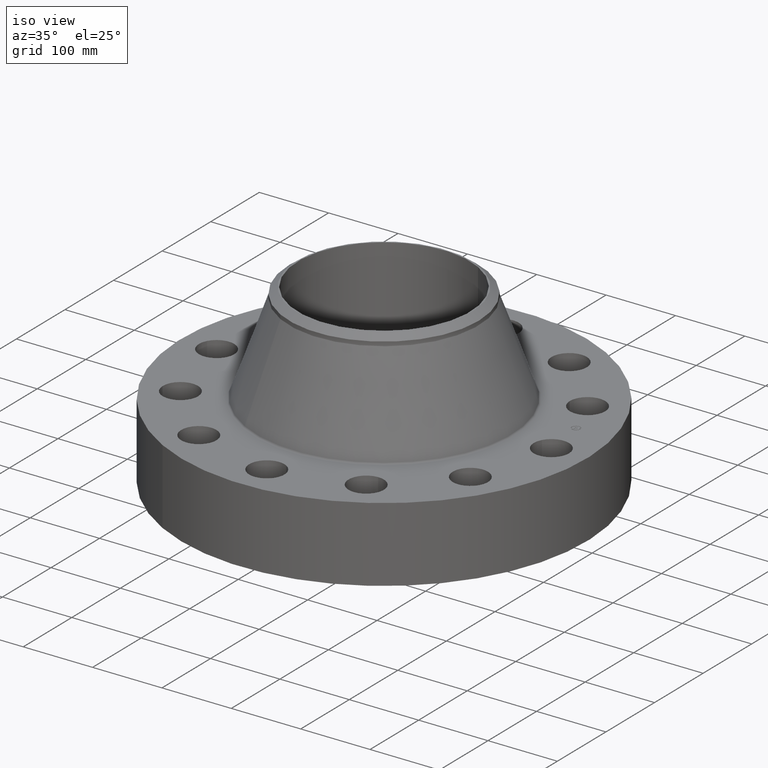
[diagram: clean part render]
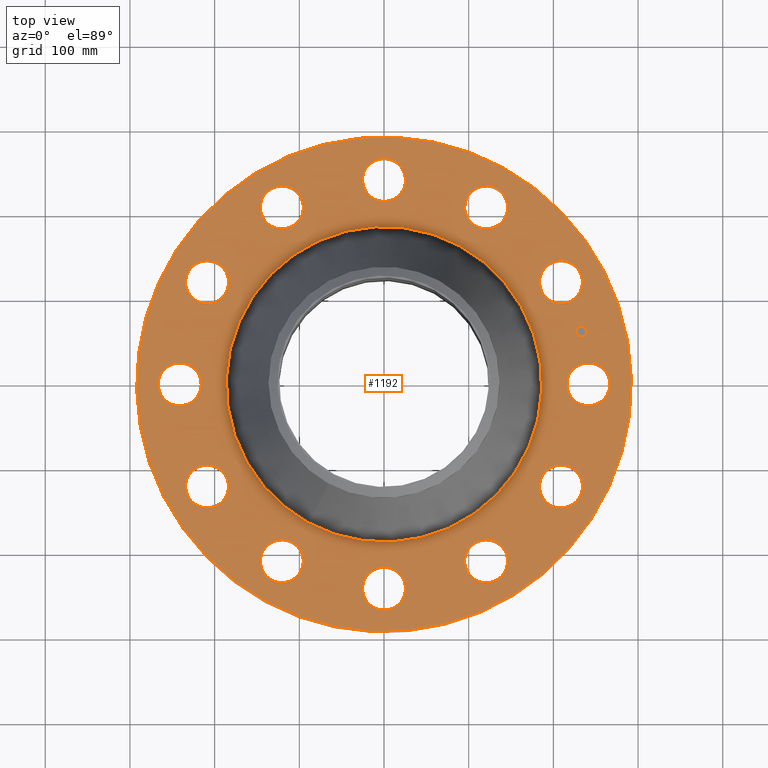
[diagram: tour spotlight — one face highlighted and labeled with its STEP entity id]
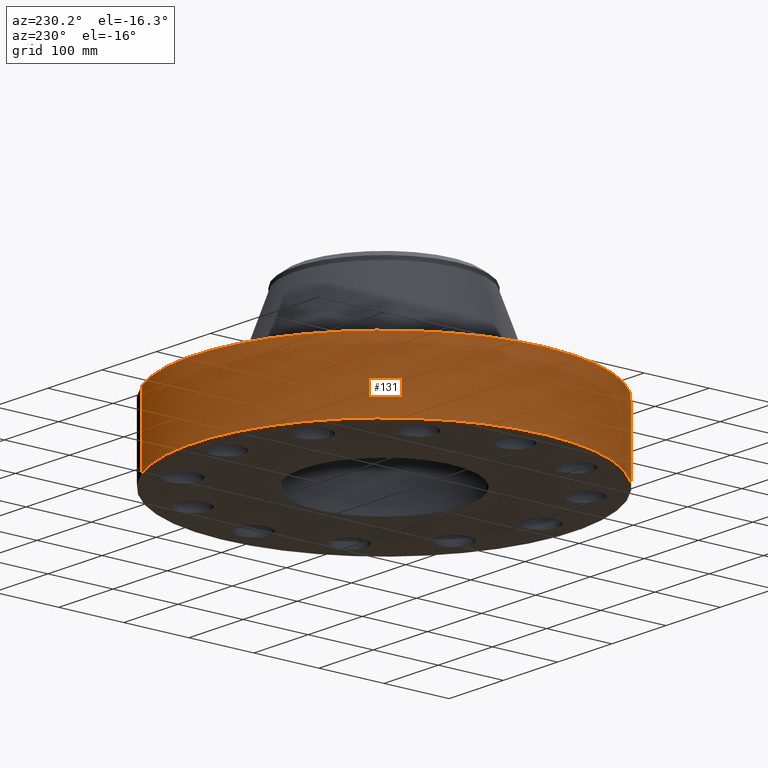
[diagram: tour spotlight — one face highlighted and labeled with its STEP entity id]
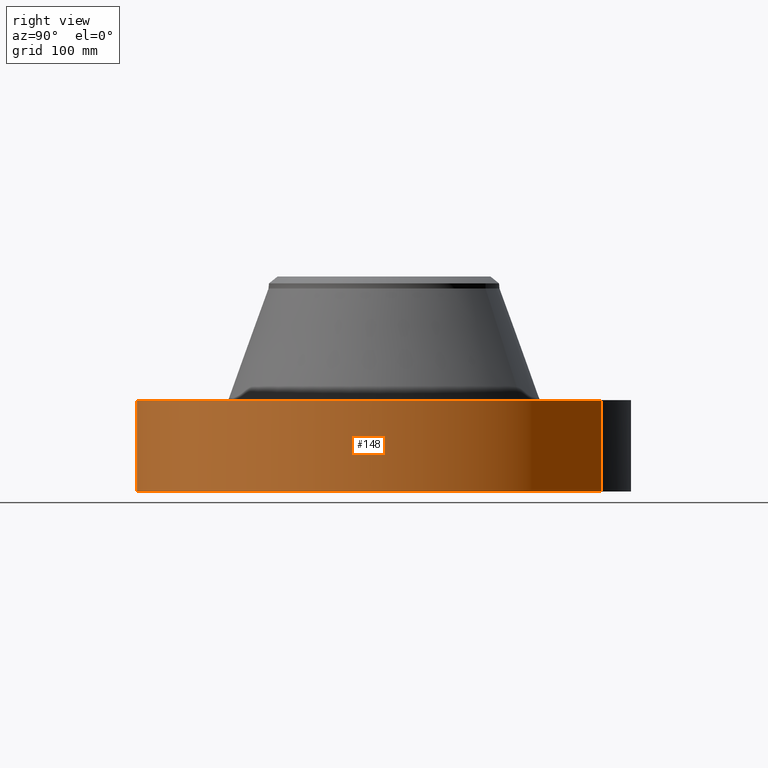
[diagram: tour spotlight — one face highlighted and labeled with its STEP entity id]
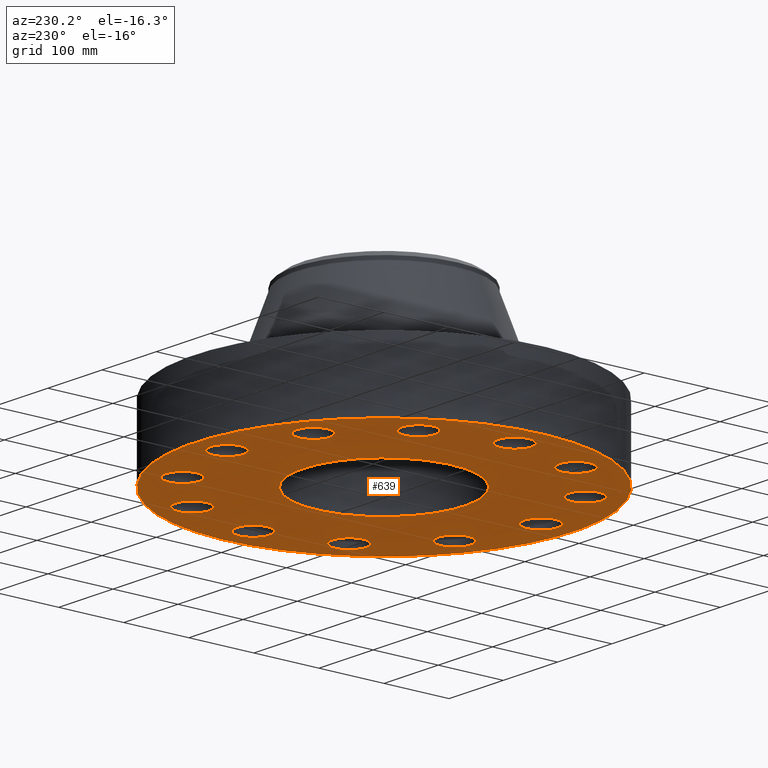
[diagram: tour spotlight — one face highlighted and labeled with its STEP entity id]
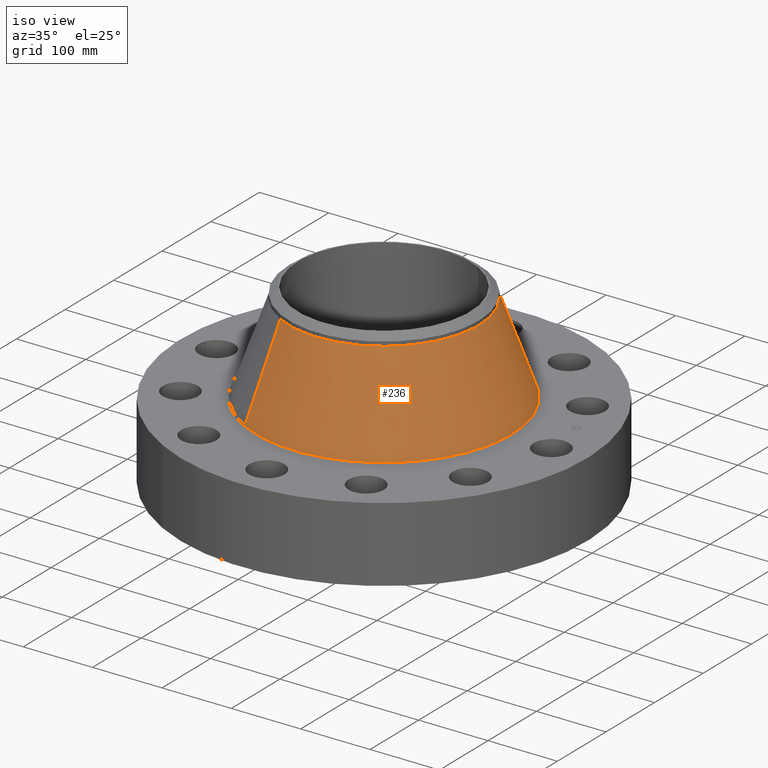
[diagram: tour spotlight — one face highlighted and labeled with its STEP entity id]
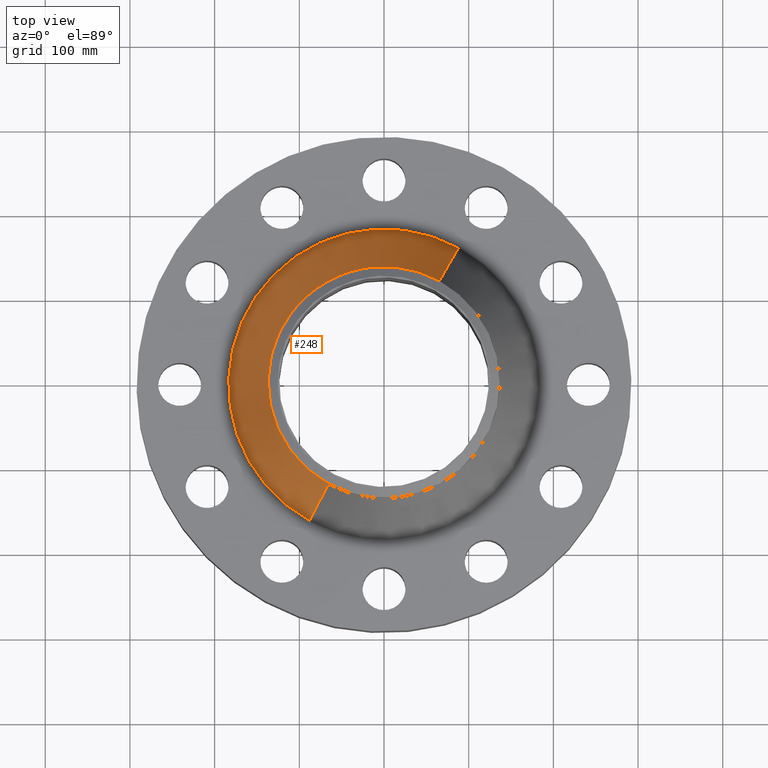
[diagram: tour spotlight — one face highlighted and labeled with its STEP entity id]
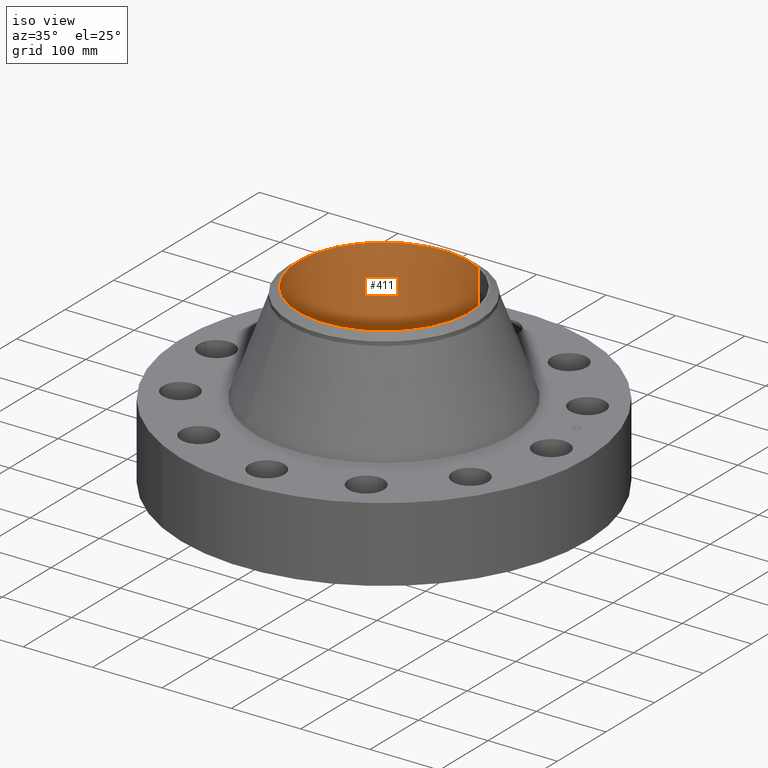
[diagram: tour spotlight — one face highlighted and labeled with its STEP entity id]
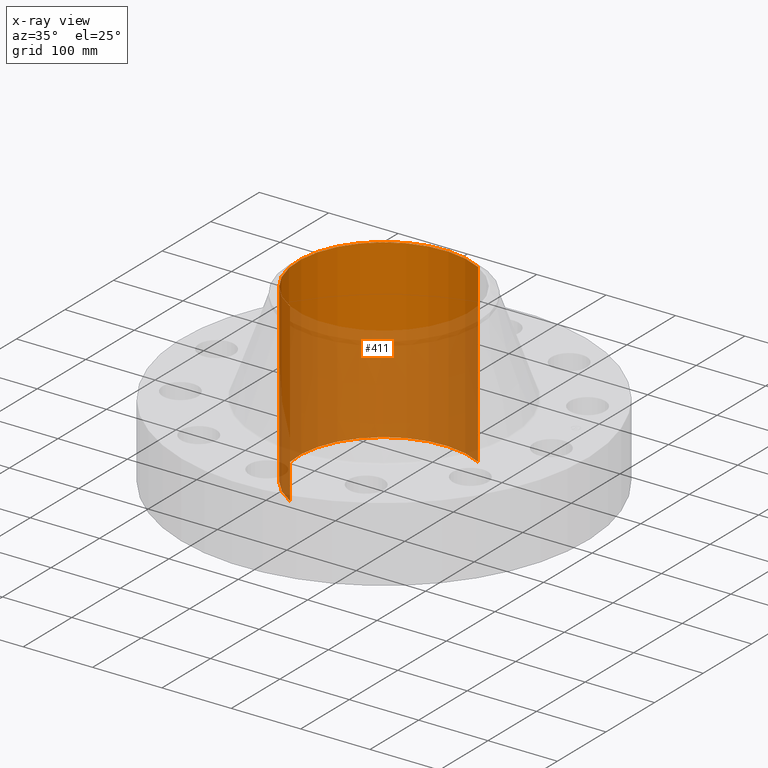
[diagram: x-ray of the same camera — body ghosted, this tour face saturated]
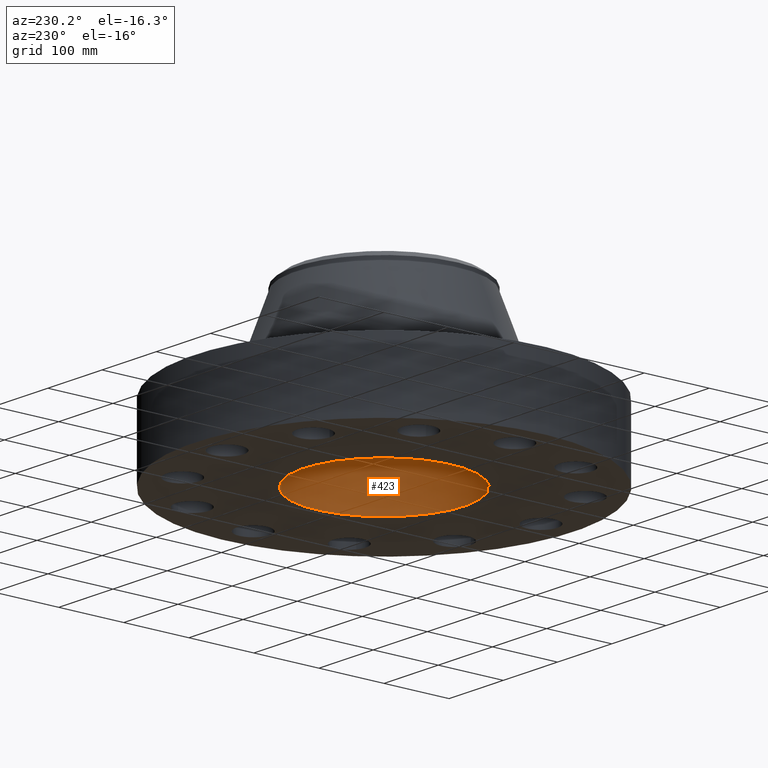
[diagram: tour spotlight — one face highlighted and labeled with its STEP entity id]
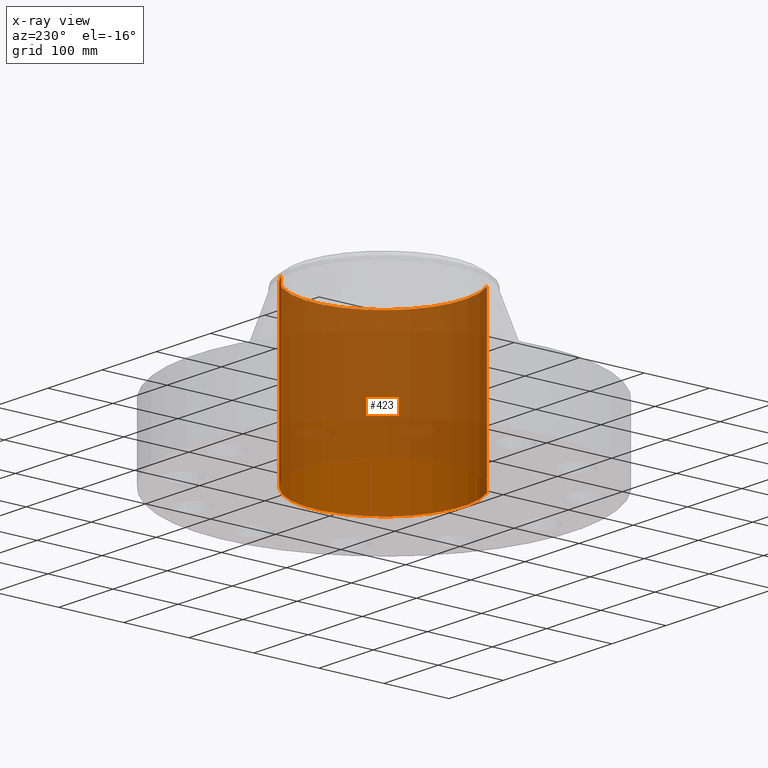
[diagram: x-ray of the same camera — body ghosted, this tour face saturated]
A machine part: a face-by-face anatomy tour. The part has 424 B-rep faces; the first image is the clean iso view, then the 8 largest visible faces are spotlighted one at a time (largest first), each with its STEP entity span.

Face 1 — top view, entity #1192. In plain terms, the highlighted planar face has unit normal (0, 0, -1).
Definition (entity closure, byte-faithful):
#65=AXIS2_PLACEMENT_3D('Circle Axis2P3D',#63,#64,$) ;
#82=AXIS2_PLACEMENT_3D('Circle Axis2P3D',#80,#81,$) ;
#115=AXIS2_PLACEMENT_3D('Circle Axis2P3D',#113,#114,$) ;
#139=AXIS2_PLACEMENT_3D('Circle Axis2P3D',#137,#138,$) ;
#156=AXIS2_PLACEMENT_3D('Circle Axis2P3D',#154,#155,$) ;
#191=AXIS2_PLACEMENT_3D('Circle Axis2P3D',#189,#190,$) ;
#661=AXIS2_PLACEMENT_3D('Circle Axis2P3D',#659,#660,$) ;
#673=AXIS2_PLACEMENT_3D('Circle Axis2P3D',#671,#672,$) ;
#704=AXIS2_PLACEMENT_3D('Circle Axis2P3D',#702,#703,$) ;
#716=AXIS2_PLACEMENT_3D('Circle Axis2P3D',#714,#715,$) ;
#747=AXIS2_PLACEMENT_3D('Circle Axis2P3D',#745,#746,$) ;
#759=AXIS2_PLACEMENT_3D('Circle Axis2P3D',#757,#758,$) ;
#790=AXIS2_PLACEMENT_3D('Circle Axis2P3D',#788,#789,$) ;
#802=AXIS2_PLACEMENT_3D('Circle Axis2P3D',#800,#801,$) ;
#833=AXIS2_PLACEMENT_3D('Circle Axis2P3D',#831,#832,$) ;
#845=AXIS2_PLACEMENT_3D('Circle Axis2P3D',#843,#844,$) ;
#876=AXIS2_PLACEMENT_3D('Circle Axis2P3D',#874,#875,$) ;
#888=AXIS2_PLACEMENT_3D('Circle Axis2P3D',#886,#887,$) ;
#919=AXIS2_PLACEMENT_3D('Circle Axis2P3D',#917,#918,$) ;
#931=AXIS2_PLACEMENT_3D('Circle Axis2P3D',#929,#930,$) ;
#962=AXIS2_PLACEMENT_3D('Circle Axis2P3D',#960,#961,$) ;
#974=AXIS2_PLACEMENT_3D('Circle Axis2P3D',#972,#973,$) ;
#1005=AXIS2_PLACEMENT_3D('Circle Axis2P3D',#1003,#1004,$) ;
#1017=AXIS2_PLACEMENT_3D('Circle Axis2P3D',#1015,#1016,$) ;
#1048=AXIS2_PLACEMENT_3D('Circle Axis2P3D',#1046,#1047,$) ;
#1060=AXIS2_PLACEMENT_3D('Circle Axis2P3D',#1058,#1059,$) ;
#1091=AXIS2_PLACEMENT_3D('Circle Axis2P3D',#1089,#1090,$) ;
#1103=AXIS2_PLACEMENT_3D('Circle Axis2P3D',#1101,#1102,$) ;
#1116=AXIS2_PLACEMENT_3D('Plane Axis2P3D',#1113,#1114,#1115) ;
#1176=AXIS2_PLACEMENT_3D('Circle Axis2P3D',#1174,#1175,$) ;
#1185=AXIS2_PLACEMENT_3D('Circle Axis2P3D',#1183,#1184,$) ;
#46=CARTESIAN_POINT('Vertex',(8.62241743814,0.479425538606,4.25000000002)) ;
#60=CARTESIAN_POINT('Vertex',(10.3775825619,-0.479425538606,4.25000000002)) ;
#63=CARTESIAN_POINT('Axis2P3D Location',(9.50000000004,0.,4.25000000002)) ;
#80=CARTESIAN_POINT('Axis2P3D Location',(9.50000000004,0.,4.25000000002)) ;
#110=CARTESIAN_POINT('Vertex',(-5.51339369397,-10.0921994618,4.25000000002)) ;
#113=CARTESIAN_POINT('Axis2P3D Location',(0.,0.,4.25000000002)) ;
#117=CARTESIAN_POINT('Vertex',(5.51339369397,10.0921994618,4.25000000002)) ;
#137=CARTESIAN_POINT('Axis2P3D Location',(0.,0.,4.25000000002)) ;
#154=CARTESIAN_POINT('Axis2P3D Location',(0.,0.,4.25000000002)) ;
#158=CARTESIAN_POINT('Vertex',(3.51622258166,6.43640226255,4.25000000002)) ;
#160=CARTESIAN_POINT('Vertex',(-3.51622258166,-6.43640226255,4.25000000002)) ;
#189=CARTESIAN_POINT('Axis2P3D Location',(0.,0.,4.25000000002)) ;
#649=CARTESIAN_POINT('Vertex',(-7.70694531277,3.89601402342,4.25000000002)) ;
#656=CARTESIAN_POINT('Vertex',(-8.7475373592,5.60398597662,4.25000000002)) ;
#659=CARTESIAN_POINT('Axis2P3D Location',(-8.22724133599,4.75000000002,4.25000000002)) ;
#671=CARTESIAN_POINT('Axis2P3D Location',(-8.22724133599,4.75000000002,4.25000000002)) ;
#692=CARTESIAN_POINT('Vertex',(4.72640341473,-7.22751977416,4.25000000002)) ;
#699=CARTESIAN_POINT('Vertex',(4.77359658531,-9.22696289781,4.25000000002)) ;
#702=CARTESIAN_POINT('Axis2P3D Location',(4.75000000002,-8.22724133599,4.25000000002)) ;
#714=CARTESIAN_POINT('Axis2P3D Location',(4.75000000002,-8.22724133599,4.25000000002)) ;
#735=CARTESIAN_POINT('Vertex',(-4.72640341473,7.22751977416,4.25000000002)) ;
#742=CARTESIAN_POINT('Vertex',(-4.77359658531,9.22696289781,4.25000000002)) ;
#745=CARTESIAN_POINT('Axis2P3D Location',(-4.75000000002,8.22724133599,4.25000000002)) ;
#757=CARTESIAN_POINT('Axis2P3D Location',(-4.75000000002,8.22724133599,4.25000000002)) ;
#778=CARTESIAN_POINT('Vertex',(0.479425538606,-8.62241743814,4.25000000002)) ;
#785=CARTESIAN_POINT('Vertex',(-0.479425538606,-10.3775825619,4.25000000002)) ;
#788=CARTESIAN_POINT('Axis2P3D Location',(-5.37257708608E-016,-9.50000000004,4.25000000002)) ;
#800=CARTESIAN_POINT('Axis2P3D Location',(-5.37257708608E-016,-9.50000000004,4.25000000002)) ;
#821=CARTESIAN_POINT('Vertex',(-0.479425538606,8.62241743814,4.25000000002)) ;
#828=CARTESIAN_POINT('Vertex',(0.479425538606,10.3775825619,4.25000000002)) ;
#831=CARTESIAN_POINT('Axis2P3D Location',(-6.26156750587E-016,9.50000000004,4.25000000002)) ;
#843=CARTESIAN_POINT('Axis2P3D Location',(-6.26156750587E-016,9.50000000004,4.25000000002)) ;
#864=CARTESIAN_POINT('Vertex',(-3.89601402342,-7.70694531277,4.25000000002)) ;
#871=CARTESIAN_POINT('Vertex',(-5.60398597662,-8.7475373592,4.25000000002)) ;
#874=CARTESIAN_POINT('Axis2P3D Location',(-4.75000000002,-8.22724133599,4.25000000002)) ;
#886=CARTESIAN_POINT('Axis2P3D Location',(-4.75000000002,-8.22724133599,4.25000000002)) ;
#907=CARTESIAN_POINT('Vertex',(3.89601402342,7.70694531277,4.25000000002)) ;
#914=CARTESIAN_POINT('Vertex',(5.60398597662,8.7475373592,4.25000000002)) ;
#917=CARTESIAN_POINT('Axis2P3D Location',(4.75000000002,8.22724133599,4.25000000002)) ;
#929=CARTESIAN_POINT('Axis2P3D Location',(4.75000000002,8.22724133599,4.25000000002)) ;
#950=CARTESIAN_POINT('Vertex',(-7.22751977416,-4.72640341473,4.25000000002)) ;
#957=CARTESIAN_POINT('Vertex',(-9.22696289781,-4.77359658531,4.25000000002)) ;
#960=CARTESIAN_POINT('Axis2P3D Location',(-8.22724133599,-4.75000000002,4.25000000002)) ;
#972=CARTESIAN_POINT('Axis2P3D Location',(-8.22724133599,-4.75000000002,4.25000000002)) ;
#993=CARTESIAN_POINT('Vertex',(7.22751977416,4.72640341473,4.25000000002)) ;
#1000=CARTESIAN_POINT('Vertex',(9.22696289781,4.77359658531,4.25000000002)) ;
#1003=CARTESIAN_POINT('Axis2P3D Location',(8.22724133599,4.75000000002,4.25000000002)) ;
#1015=CARTESIAN_POINT('Axis2P3D Location',(8.22724133599,4.75000000002,4.25000000002)) ;
#1036=CARTESIAN_POINT('Vertex',(-8.62241743814,-0.479425538606,4.25000000002)) ;
#1043=CARTESIAN_POINT('Vertex',(-10.3775825619,0.479425538606,4.25000000002)) ;
#1046=CARTESIAN_POINT('Axis2P3D Location',(-9.50000000004,-1.16341445919E-015,4.25000000002)) ;
#1058=CARTESIAN_POINT('Axis2P3D Location',(-9.50000000004,-1.16341445919E-015,4.25000000002)) ;
#1079=CARTESIAN_POINT('Vertex',(7.70694531277,-3.89601402342,4.25000000002)) ;
#1086=CARTESIAN_POINT('Vertex',(8.7475373592,-5.60398597662,4.25000000002)) ;
#1089=CARTESIAN_POINT('Axis2P3D Location',(8.22724133599,-4.75000000002,4.25000000002)) ;
#1101=CARTESIAN_POINT('Axis2P3D Location',(8.22724133599,-4.75000000002,4.25000000002)) ;
#1113=CARTESIAN_POINT('Axis2P3D Location',(0.,11.5,4.25000000002)) ;
#1174=CARTESIAN_POINT('Axis2P3D Location',(9.17629534978,2.45878092848,4.25000000002)) ;
#1178=CARTESIAN_POINT('Vertex',(9.11223763612,2.69784757049,4.25000000002)) ;
#1180=CARTESIAN_POINT('Vertex',(9.24035306345,2.21971428648,4.25000000002)) ;
#1183=CARTESIAN_POINT('Axis2P3D Location',(9.17629534978,2.45878092848,4.25000000002)) ;
#64=DIRECTION('Axis2P3D Direction',(0.,-0.,-0.0393700787402)) ;
#81=DIRECTION('Axis2P3D Direction',(0.,-0.,-0.0393700787402)) ;
#114=DIRECTION('Axis2P3D Direction',(0.,0.,-0.0393700787402)) ;
#138=DIRECTION('Axis2P3D Direction',(0.,0.,-0.0393700787402)) ;
#155=DIRECTION('Axis2P3D Direction',(0.,0.,-0.0393700787402)) ;
#190=DIRECTION('Axis2P3D Direction',(0.,0.,-0.0393700787402)) ;
#660=DIRECTION('Axis2P3D Direction',(0.,0.,-0.0393700787402)) ;
#672=DIRECTION('Axis2P3D Direction',(0.,0.,-0.0393700787402)) ;
#703=DIRECTION('Axis2P3D Direction',(0.,-0.,-0.0393700787402)) ;
#715=DIRECTION('Axis2P3D Direction',(0.,-0.,-0.0393700787402)) ;
#746=DIRECTION('Axis2P3D Direction',(0.,0.,-0.0393700787402)) ;
#758=DIRECTION('Axis2P3D Direction',(0.,0.,-0.0393700787402)) ;
#789=DIRECTION('Axis2P3D Direction',(0.,-0.,-0.0393700787402)) ;
#801=DIRECTION('Axis2P3D Direction',(0.,-0.,-0.0393700787402)) ;
#832=DIRECTION('Axis2P3D Direction',(0.,0.,-0.0393700787402)) ;
#844=DIRECTION('Axis2P3D Direction',(0.,0.,-0.0393700787402)) ;
#875=DIRECTION('Axis2P3D Direction',(-0.,0.,-0.0393700787402)) ;
#887=DIRECTION('Axis2P3D Direction',(-0.,0.,-0.0393700787402)) ;
#918=DIRECTION('Axis2P3D Direction',(0.,0.,-0.0393700787402)) ;
#930=DIRECTION('Axis2P3D Direction',(0.,0.,-0.0393700787402)) ;
#961=DIRECTION('Axis2P3D Direction',(-0.,0.,-0.0393700787402)) ;
#973=DIRECTION('Axis2P3D Direction',(-0.,0.,-0.0393700787402)) ;
#1004=DIRECTION('Axis2P3D Direction',(0.,0.,-0.0393700787402)) ;
#1016=DIRECTION('Axis2P3D Direction',(0.,0.,-0.0393700787402)) ;
#1047=DIRECTION('Axis2P3D Direction',(-0.,0.,-0.0393700787402)) ;
#1059=DIRECTION('Axis2P3D Direction',(-0.,0.,-0.0393700787402)) ;
#1090=DIRECTION('Axis2P3D Direction',(0.,-0.,-0.0393700787402)) ;
#1102=DIRECTION('Axis2P3D Direction',(0.,-0.,-0.0393700787402)) ;
#1114=DIRECTION('Axis2P3D Direction',(0.,0.,-0.0393700787402)) ;
#1115=DIRECTION('Axis2P3D XDirection',(0.0393700787402,0.,0.)) ;
#1175=DIRECTION('Axis2P3D Direction',(0.,0.,-0.0393700787402)) ;
#1184=DIRECTION('Axis2P3D Direction',(0.,0.,-0.0393700787402)) ;
#1119=ORIENTED_EDGE('',*,*,#141,.F.) ;
#1120=ORIENTED_EDGE('',*,*,#119,.F.) ;
#1123=ORIENTED_EDGE('',*,*,#67,.T.) ;
#1124=ORIENTED_EDGE('',*,*,#84,.T.) ;
#1127=ORIENTED_EDGE('',*,*,#193,.T.) ;
#1128=ORIENTED_EDGE('',*,*,#162,.T.) ;
#1131=ORIENTED_EDGE('',*,*,#1105,.T.) ;
#1132=ORIENTED_EDGE('',*,*,#1093,.T.) ;
#1135=ORIENTED_EDGE('',*,*,#718,.T.) ;
#1136=ORIENTED_EDGE('',*,*,#706,.T.) ;
#1139=ORIENTED_EDGE('',*,*,#804,.T.) ;
#1140=ORIENTED_EDGE('',*,*,#792,.T.) ;
#1143=ORIENTED_EDGE('',*,*,#890,.T.) ;
#1144=ORIENTED_EDGE('',*,*,#878,.T.) ;
#1147=ORIENTED_EDGE('',*,*,#976,.T.) ;
#1148=ORIENTED_EDGE('',*,*,#964,.T.) ;
#1151=ORIENTED_EDGE('',*,*,#1062,.T.) ;
#1152=ORIENTED_EDGE('',*,*,#1050,.T.) ;
#1155=ORIENTED_EDGE('',*,*,#675,.T.) ;
#1156=ORIENTED_EDGE('',*,*,#663,.T.) ;
#1159=ORIENTED_EDGE('',*,*,#761,.T.) ;
#1160=ORIENTED_EDGE('',*,*,#749,.T.) ;
#1163=ORIENTED_EDGE('',*,*,#847,.T.) ;
#1164=ORIENTED_EDGE('',*,*,#835,.T.) ;
#1167=ORIENTED_EDGE('',*,*,#933,.T.) ;
#1168=ORIENTED_EDGE('',*,*,#921,.T.) ;
#1171=ORIENTED_EDGE('',*,*,#1019,.T.) ;
#1172=ORIENTED_EDGE('',*,*,#1007,.T.) ;
#1189=ORIENTED_EDGE('',*,*,#1182,.T.) ;
#1190=ORIENTED_EDGE('',*,*,#1187,.T.) ;
#1125=FACE_BOUND('',#1122,.T.) ;
#1129=FACE_BOUND('',#1126,.T.) ;
#1133=FACE_BOUND('',#1130,.T.) ;
#1137=FACE_BOUND('',#1134,.T.) ;
#1141=FACE_BOUND('',#1138,.T.) ;
#1145=FACE_BOUND('',#1142,.T.) ;
#1149=FACE_BOUND('',#1146,.T.) ;
#1153=FACE_BOUND('',#1150,.T.) ;
#1157=FACE_BOUND('',#1154,.T.) ;
#1161=FACE_BOUND('',#1158,.T.) ;
#1165=FACE_BOUND('',#1162,.T.) ;
#1169=FACE_BOUND('',#1166,.T.) ;
#1173=FACE_BOUND('',#1170,.T.) ;
#1191=FACE_BOUND('',#1188,.T.) ;
#1192=ADVANCED_FACE('PartBody',(#1121,#1125,#1129,#1133,#1137,#1141,#1145,#1149,#1153,#1157,#1161,#1165,#1169,#1173,#1191),#1117,.F.) ;
#66=CIRCLE('generated circle',#65,1.) ;
#83=CIRCLE('generated circle',#82,1.) ;
#116=CIRCLE('generated circle',#115,11.5) ;
#140=CIRCLE('generated circle',#139,11.5) ;
#157=CIRCLE('generated circle',#156,7.33424129199) ;
#192=CIRCLE('generated circle',#191,7.33424129199) ;
#662=CIRCLE('generated circle',#661,1.) ;
#674=CIRCLE('generated circle',#673,1.) ;
#705=CIRCLE('generated circle',#704,1.) ;
#717=CIRCLE('generated circle',#716,1.) ;
#748=CIRCLE('generated circle',#747,1.) ;
#760=CIRCLE('generated circle',#759,1.) ;
#791=CIRCLE('generated circle',#790,1.) ;
#803=CIRCLE('generated circle',#802,1.) ;
#834=CIRCLE('generated circle',#833,1.) ;
#846=CIRCLE('generated circle',#845,1.) ;
#877=CIRCLE('generated circle',#876,1.) ;
#889=CIRCLE('generated circle',#888,1.) ;
#920=CIRCLE('generated circle',#919,1.) ;
#932=CIRCLE('generated circle',#931,1.) ;
#963=CIRCLE('generated circle',#962,1.) ;
#975=CIRCLE('generated circle',#974,1.) ;
#1006=CIRCLE('generated circle',#1005,1.) ;
#1018=CIRCLE('generated circle',#1017,1.) ;
#1049=CIRCLE('generated circle',#1048,1.) ;
#1061=CIRCLE('generated circle',#1060,1.) ;
#1092=CIRCLE('generated circle',#1091,1.) ;
#1104=CIRCLE('generated circle',#1103,1.) ;
#1177=CIRCLE('generated circle',#1176,0.247500000001) ;
#1186=CIRCLE('generated circle',#1185,0.247500000001) ;
#67=EDGE_CURVE('',#47,#61,#66,.T.) ;
#84=EDGE_CURVE('',#61,#47,#83,.T.) ;
#119=EDGE_CURVE('',#111,#118,#116,.T.) ;
#141=EDGE_CURVE('',#118,#111,#140,.T.) ;
#162=EDGE_CURVE('',#159,#161,#157,.T.) ;
#193=EDGE_CURVE('',#161,#159,#192,.T.) ;
#663=EDGE_CURVE('',#650,#657,#662,.T.) ;
#675=EDGE_CURVE('',#657,#650,#674,.T.) ;
#706=EDGE_CURVE('',#693,#700,#705,.T.) ;
#718=EDGE_CURVE('',#700,#693,#717,.T.) ;
#749=EDGE_CURVE('',#736,#743,#748,.T.) ;
#761=EDGE_CURVE('',#743,#736,#760,.T.) ;
#792=EDGE_CURVE('',#779,#786,#791,.T.) ;
#804=EDGE_CURVE('',#786,#779,#803,.T.) ;
#835=EDGE_CURVE('',#822,#829,#834,.T.) ;
#847=EDGE_CURVE('',#829,#822,#846,.T.) ;
#878=EDGE_CURVE('',#865,#872,#877,.T.) ;
#890=EDGE_CURVE('',#872,#865,#889,.T.) ;
#921=EDGE_CURVE('',#908,#915,#920,.T.) ;
#933=EDGE_CURVE('',#915,#908,#932,.T.) ;
#964=EDGE_CURVE('',#951,#958,#963,.T.) ;
#976=EDGE_CURVE('',#958,#951,#975,.T.) ;
#1007=EDGE_CURVE('',#994,#1001,#1006,.T.) ;
#1019=EDGE_CURVE('',#1001,#994,#1018,.T.) ;
#1050=EDGE_CURVE('',#1037,#1044,#1049,.T.) ;
#1062=EDGE_CURVE('',#1044,#1037,#1061,.T.) ;
#1093=EDGE_CURVE('',#1080,#1087,#1092,.T.) ;
#1105=EDGE_CURVE('',#1087,#1080,#1104,.T.) ;
#1182=EDGE_CURVE('',#1179,#1181,#1177,.T.) ;
#1187=EDGE_CURVE('',#1181,#1179,#1186,.T.) ;
#1118=EDGE_LOOP('',(#1119,#1120)) ;
#1122=EDGE_LOOP('',(#1123,#1124)) ;
#1126=EDGE_LOOP('',(#1127,#1128)) ;
#1130=EDGE_LOOP('',(#1131,#1132)) ;
#1134=EDGE_LOOP('',(#1135,#1136)) ;
#1138=EDGE_LOOP('',(#1139,#1140)) ;
#1142=EDGE_LOOP('',(#1143,#1144)) ;
#1146=EDGE_LOOP('',(#1147,#1148)) ;
#1150=EDGE_LOOP('',(#1151,#1152)) ;
#1154=EDGE_LOOP('',(#1155,#1156)) ;
#1158=EDGE_LOOP('',(#1159,#1160)) ;
#1162=EDGE_LOOP('',(#1163,#1164)) ;
#1166=EDGE_LOOP('',(#1167,#1168)) ;
#1170=EDGE_LOOP('',(#1171,#1172)) ;
#1188=EDGE_LOOP('',(#1189,#1190)) ;
#1121=FACE_OUTER_BOUND('',#1118,.T.) ;
#1117=PLANE('',#1116) ;
#47=VERTEX_POINT('',#46) ;
#61=VERTEX_POINT('',#60) ;
#111=VERTEX_POINT('',#110) ;
#118=VERTEX_POINT('',#117) ;
#159=VERTEX_POINT('',#158) ;
#161=VERTEX_POINT('',#160) ;
#650=VERTEX_POINT('',#649) ;
#657=VERTEX_POINT('',#656) ;
#693=VERTEX_POINT('',#692) ;
#700=VERTEX_POINT('',#699) ;
#736=VERTEX_POINT('',#735) ;
#743=VERTEX_POINT('',#742) ;
#779=VERTEX_POINT('',#778) ;
#786=VERTEX_POINT('',#785) ;
#822=VERTEX_POINT('',#821) ;
#829=VERTEX_POINT('',#828) ;
#865=VERTEX_POINT('',#864) ;
#872=VERTEX_POINT('',#871) ;
#908=VERTEX_POINT('',#907) ;
#915=VERTEX_POINT('',#914) ;
#951=VERTEX_POINT('',#950) ;
#958=VERTEX_POINT('',#957) ;
#994=VERTEX_POINT('',#993) ;
#1001=VERTEX_POINT('',#1000) ;
#1037=VERTEX_POINT('',#1036) ;
#1044=VERTEX_POINT('',#1043) ;
#1080=VERTEX_POINT('',#1079) ;
#1087=VERTEX_POINT('',#1086) ;
#1179=VERTEX_POINT('',#1178) ;
#1181=VERTEX_POINT('',#1180) ;

Face 2 — auxiliary view, entity #131. In plain terms, the highlighted cylindrical surface (partial cylindrical patch) has radius 292.1 mm, axis along (0, 0, -1).
Definition (entity closure, byte-faithful):
#95=AXIS2_PLACEMENT_3D('Cylinder Axis2P3D',#92,#93,#94) ;
#99=AXIS2_PLACEMENT_3D('Circle Axis2P3D',#97,#98,$) ;
#115=AXIS2_PLACEMENT_3D('Circle Axis2P3D',#113,#114,$) ;
#92=CARTESIAN_POINT('Axis2P3D Location',(0.,0.,5.00000000002)) ;
#97=CARTESIAN_POINT('Axis2P3D Location',(0.,0.,1.1189649382E-015)) ;
#101=CARTESIAN_POINT('Vertex',(-5.51339369397,-10.0921994618,1.1189649382E-015)) ;
#103=CARTESIAN_POINT('Vertex',(5.51339369397,10.0921994618,1.1189649382E-015)) ;
#106=CARTESIAN_POINT('Line Origine',(-5.51339369397,-10.0921994618,2.12500000001)) ;
#110=CARTESIAN_POINT('Vertex',(-5.51339369397,-10.0921994618,4.25000000002)) ;
#113=CARTESIAN_POINT('Axis2P3D Location',(0.,0.,4.25000000002)) ;
#117=CARTESIAN_POINT('Vertex',(5.51339369397,10.0921994618,4.25000000002)) ;
#120=CARTESIAN_POINT('Line Origine',(5.51339369397,10.0921994618,2.12500000001)) ;
#93=DIRECTION('Axis2P3D Direction',(0.,0.,-0.0393700787402)) ;
#94=DIRECTION('Axis2P3D XDirection',(0.0188750212049,0.0345504945626,0.)) ;
#98=DIRECTION('Axis2P3D Direction',(0.,0.,-0.0393700787402)) ;
#107=DIRECTION('Vector Direction',(0.,0.,-0.0393700787402)) ;
#114=DIRECTION('Axis2P3D Direction',(0.,0.,-0.0393700787402)) ;
#121=DIRECTION('Vector Direction',(0.,0.,-0.0393700787402)) ;
#108=VECTOR('Line Direction',#107,0.0393700787402) ;
#122=VECTOR('Line Direction',#121,0.0393700787402) ;
#126=ORIENTED_EDGE('',*,*,#105,.F.) ;
#127=ORIENTED_EDGE('',*,*,#112,.T.) ;
#128=ORIENTED_EDGE('',*,*,#119,.T.) ;
#129=ORIENTED_EDGE('',*,*,#124,.F.) ;
#131=ADVANCED_FACE('PartBody',(#130),#96,.T.) ;
#100=CIRCLE('generated circle',#99,11.5) ;
#116=CIRCLE('generated circle',#115,11.5) ;
#96=CYLINDRICAL_SURFACE('generated cylinder',#95,11.5) ;
#105=EDGE_CURVE('',#102,#104,#100,.T.) ;
#112=EDGE_CURVE('',#102,#111,#109,.F.) ;
#119=EDGE_CURVE('',#111,#118,#116,.T.) ;
#124=EDGE_CURVE('',#104,#118,#123,.F.) ;
#125=EDGE_LOOP('',(#126,#127,#128,#129)) ;
#130=FACE_OUTER_BOUND('',#125,.T.) ;
#109=LINE('Line',#106,#108) ;
#123=LINE('Line',#120,#122) ;
#102=VERTEX_POINT('',#101) ;
#104=VERTEX_POINT('',#103) ;
#111=VERTEX_POINT('',#110) ;
#118=VERTEX_POINT('',#117) ;

Face 3 — right view, entity #148. In plain terms, the highlighted cylindrical surface (partial cylindrical patch) has radius 292.1 mm, axis along (0, 0, -1).
Definition (entity closure, byte-faithful):
#95=AXIS2_PLACEMENT_3D('Cylinder Axis2P3D',#92,#93,#94) ;
#134=AXIS2_PLACEMENT_3D('Circle Axis2P3D',#132,#133,$) ;
#139=AXIS2_PLACEMENT_3D('Circle Axis2P3D',#137,#138,$) ;
#92=CARTESIAN_POINT('Axis2P3D Location',(0.,0.,5.00000000002)) ;
#101=CARTESIAN_POINT('Vertex',(-5.51339369397,-10.0921994618,1.1189649382E-015)) ;
#103=CARTESIAN_POINT('Vertex',(5.51339369397,10.0921994618,1.1189649382E-015)) ;
#106=CARTESIAN_POINT('Line Origine',(-5.51339369397,-10.0921994618,2.12500000001)) ;
#110=CARTESIAN_POINT('Vertex',(-5.51339369397,-10.0921994618,4.25000000002)) ;
#117=CARTESIAN_POINT('Vertex',(5.51339369397,10.0921994618,4.25000000002)) ;
#120=CARTESIAN_POINT('Line Origine',(5.51339369397,10.0921994618,2.12500000001)) ;
#132=CARTESIAN_POINT('Axis2P3D Location',(0.,0.,1.1189649382E-015)) ;
#137=CARTESIAN_POINT('Axis2P3D Location',(0.,0.,4.25000000002)) ;
#93=DIRECTION('Axis2P3D Direction',(0.,0.,-0.0393700787402)) ;
#94=DIRECTION('Axis2P3D XDirection',(0.0188750212049,0.0345504945626,0.)) ;
#107=DIRECTION('Vector Direction',(0.,0.,-0.0393700787402)) ;
#121=DIRECTION('Vector Direction',(0.,0.,-0.0393700787402)) ;
#133=DIRECTION('Axis2P3D Direction',(0.,0.,-0.0393700787402)) ;
#138=DIRECTION('Axis2P3D Direction',(0.,0.,-0.0393700787402)) ;
#108=VECTOR('Line Direction',#107,0.0393700787402) ;
#122=VECTOR('Line Direction',#121,0.0393700787402) ;
#143=ORIENTED_EDGE('',*,*,#136,.F.) ;
#144=ORIENTED_EDGE('',*,*,#124,.T.) ;
#145=ORIENTED_EDGE('',*,*,#141,.T.) ;
#146=ORIENTED_EDGE('',*,*,#112,.F.) ;
#148=ADVANCED_FACE('PartBody',(#147),#96,.T.) ;
#135=CIRCLE('generated circle',#134,11.5) ;
#140=CIRCLE('generated circle',#139,11.5) ;
#96=CYLINDRICAL_SURFACE('generated cylinder',#95,11.5) ;
#112=EDGE_CURVE('',#102,#111,#109,.F.) ;
#124=EDGE_CURVE('',#104,#118,#123,.F.) ;
#136=EDGE_CURVE('',#104,#102,#135,.T.) ;
#141=EDGE_CURVE('',#118,#111,#140,.T.) ;
#142=EDGE_LOOP('',(#143,#144,#145,#146)) ;
#147=FACE_OUTER_BOUND('',#142,.T.) ;
#109=LINE('Line',#106,#108) ;
#123=LINE('Line',#120,#122) ;
#102=VERTEX_POINT('',#101) ;
#104=VERTEX_POINT('',#103) ;
#111=VERTEX_POINT('',#110) ;
#118=VERTEX_POINT('',#117) ;

Face 4 — auxiliary view, entity #639. In plain terms, the highlighted planar face has unit normal (0, 0, -1).
Definition (entity closure, byte-faithful):
#51=AXIS2_PLACEMENT_3D('Circle Axis2P3D',#49,#50,$) ;
#77=AXIS2_PLACEMENT_3D('Circle Axis2P3D',#75,#76,$) ;
#99=AXIS2_PLACEMENT_3D('Circle Axis2P3D',#97,#98,$) ;
#134=AXIS2_PLACEMENT_3D('Circle Axis2P3D',#132,#133,$) ;
#395=AXIS2_PLACEMENT_3D('Circle Axis2P3D',#393,#394,$) ;
#414=AXIS2_PLACEMENT_3D('Circle Axis2P3D',#412,#413,$) ;
#427=AXIS2_PLACEMENT_3D('Plane Axis2P3D',#424,#425,#426) ;
#443=AXIS2_PLACEMENT_3D('Circle Axis2P3D',#441,#442,$) ;
#452=AXIS2_PLACEMENT_3D('Circle Axis2P3D',#450,#451,$) ;
#461=AXIS2_PLACEMENT_3D('Circle Axis2P3D',#459,#460,$) ;
#470=AXIS2_PLACEMENT_3D('Circle Axis2P3D',#468,#469,$) ;
#479=AXIS2_PLACEMENT_3D('Circle Axis2P3D',#477,#478,$) ;
#488=AXIS2_PLACEMENT_3D('Circle Axis2P3D',#486,#487,$) ;
#497=AXIS2_PLACEMENT_3D('Circle Axis2P3D',#495,#496,$) ;
#506=AXIS2_PLACEMENT_3D('Circle Axis2P3D',#504,#505,$) ;
#515=AXIS2_PLACEMENT_3D('Circle Axis2P3D',#513,#514,$) ;
#524=AXIS2_PLACEMENT_3D('Circle Axis2P3D',#522,#523,$) ;
#533=AXIS2_PLACEMENT_3D('Circle Axis2P3D',#531,#532,$) ;
#542=AXIS2_PLACEMENT_3D('Circle Axis2P3D',#540,#541,$) ;
#551=AXIS2_PLACEMENT_3D('Circle Axis2P3D',#549,#550,$) ;
#560=AXIS2_PLACEMENT_3D('Circle Axis2P3D',#558,#559,$) ;
#569=AXIS2_PLACEMENT_3D('Circle Axis2P3D',#567,#568,$) ;
#578=AXIS2_PLACEMENT_3D('Circle Axis2P3D',#576,#577,$) ;
#587=AXIS2_PLACEMENT_3D('Circle Axis2P3D',#585,#586,$) ;
#596=AXIS2_PLACEMENT_3D('Circle Axis2P3D',#594,#595,$) ;
#605=AXIS2_PLACEMENT_3D('Circle Axis2P3D',#603,#604,$) ;
#614=AXIS2_PLACEMENT_3D('Circle Axis2P3D',#612,#613,$) ;
#623=AXIS2_PLACEMENT_3D('Circle Axis2P3D',#621,#622,$) ;
#632=AXIS2_PLACEMENT_3D('Circle Axis2P3D',#630,#631,$) ;
#44=CARTESIAN_POINT('Vertex',(8.62241743814,0.479425538606,0.)) ;
#49=CARTESIAN_POINT('Axis2P3D Location',(9.50000000004,0.,0.)) ;
#53=CARTESIAN_POINT('Vertex',(10.3775825619,-0.479425538606,0.)) ;
#75=CARTESIAN_POINT('Axis2P3D Location',(9.50000000004,0.,0.)) ;
#97=CARTESIAN_POINT('Axis2P3D Location',(0.,0.,1.1189649382E-015)) ;
#101=CARTESIAN_POINT('Vertex',(-5.51339369397,-10.0921994618,1.1189649382E-015)) ;
#103=CARTESIAN_POINT('Vertex',(5.51339369397,10.0921994618,1.1189649382E-015)) ;
#132=CARTESIAN_POINT('Axis2P3D Location',(0.,0.,1.1189649382E-015)) ;
#390=CARTESIAN_POINT('Vertex',(-2.3371995007,-4.27821498923,-1.79034390113E-014)) ;
#393=CARTESIAN_POINT('Axis2P3D Location',(0.,0.,-2.01413688877E-014)) ;
#397=CARTESIAN_POINT('Vertex',(2.3371995007,4.27821498923,-1.79034390113E-014)) ;
#412=CARTESIAN_POINT('Axis2P3D Location',(0.,0.,-2.01413688877E-014)) ;
#424=CARTESIAN_POINT('Axis2P3D Location',(0.,4.87500000002,0.)) ;
#441=CARTESIAN_POINT('Axis2P3D Location',(8.22724133599,-4.75000000002,0.)) ;
#445=CARTESIAN_POINT('Vertex',(7.70694531277,-3.89601402342,0.)) ;
#447=CARTESIAN_POINT('Vertex',(8.7475373592,-5.60398597662,0.)) ;
#450=CARTESIAN_POINT('Axis2P3D Location',(8.22724133599,-4.75000000002,0.)) ;
#459=CARTESIAN_POINT('Axis2P3D Location',(4.75000000002,-8.22724133599,0.)) ;
#463=CARTESIAN_POINT('Vertex',(4.72640341473,-7.22751977416,0.)) ;
#465=CARTESIAN_POINT('Vertex',(4.77359658531,-9.22696289781,0.)) ;
#468=CARTESIAN_POINT('Axis2P3D Location',(4.75000000002,-8.22724133599,0.)) ;
#477=CARTESIAN_POINT('Axis2P3D Location',(1.39870617276E-016,-9.50000000004,0.)) ;
#481=CARTESIAN_POINT('Vertex',(0.479425538606,-8.62241743814,0.)) ;
#483=CARTESIAN_POINT('Vertex',(-0.479425538606,-10.3775825619,0.)) ;
#486=CARTESIAN_POINT('Axis2P3D Location',(-1.39870617276E-016,-9.50000000004,0.)) ;
#495=CARTESIAN_POINT('Axis2P3D Location',(-4.75000000002,-8.22724133599,0.)) ;
#499=CARTESIAN_POINT('Vertex',(-3.89601402342,-7.70694531277,0.)) ;
#501=CARTESIAN_POINT('Vertex',(-5.60398597662,-8.7475373592,-3.35689481461E-015)) ;
#504=CARTESIAN_POINT('Axis2P3D Location',(-4.75000000002,-8.22724133599,0.)) ;
#513=CARTESIAN_POINT('Axis2P3D Location',(-8.22724133599,-4.75000000002,0.)) ;
#517=CARTESIAN_POINT('Vertex',(-7.22751977416,-4.72640341473,0.)) ;
#519=CARTESIAN_POINT('Vertex',(-9.22696289781,-4.77359658531,0.)) ;
#522=CARTESIAN_POINT('Axis2P3D Location',(-8.22724133599,-4.75000000002,0.)) ;
#531=CARTESIAN_POINT('Axis2P3D Location',(-9.50000000004,-5.59482469102E-016,0.)) ;
#535=CARTESIAN_POINT('Vertex',(-8.62241743814,-0.479425538606,0.)) ;
#537=CARTESIAN_POINT('Vertex',(-10.3775825619,0.479425538606,0.)) ;
#540=CARTESIAN_POINT('Axis2P3D Location',(-9.50000000004,-1.67844740731E-015,0.)) ;
#549=CARTESIAN_POINT('Axis2P3D Location',(-8.22724133599,4.75000000002,0.)) ;
#553=CARTESIAN_POINT('Vertex',(-7.70694531277,3.89601402342,0.)) ;
#555=CARTESIAN_POINT('Vertex',(-8.7475373592,5.60398597662,0.)) ;
#558=CARTESIAN_POINT('Axis2P3D Location',(-8.22724133599,4.75000000002,0.)) ;
#567=CARTESIAN_POINT('Axis2P3D Location',(-4.75000000002,8.22724133599,0.)) ;
#571=CARTESIAN_POINT('Vertex',(-4.72640341473,7.22751977416,0.)) ;
#573=CARTESIAN_POINT('Vertex',(-4.77359658531,9.22696289781,0.)) ;
#576=CARTESIAN_POINT('Axis2P3D Location',(-4.75000000002,8.22724133599,0.)) ;
#585=CARTESIAN_POINT('Axis2P3D Location',(-1.1189649382E-015,9.50000000004,0.)) ;
#589=CARTESIAN_POINT('Vertex',(-0.479425538606,8.62241743814,0.)) ;
#591=CARTESIAN_POINT('Vertex',(0.479425538606,10.3775825619,0.)) ;
#594=CARTESIAN_POINT('Axis2P3D Location',(-5.59482469102E-016,9.50000000004,0.)) ;
#603=CARTESIAN_POINT('Axis2P3D Location',(4.75000000002,8.22724133599,0.)) ;
#607=CARTESIAN_POINT('Vertex',(3.89601402342,7.70694531277,0.)) ;
#609=CARTESIAN_POINT('Vertex',(5.60398597662,8.7475373592,0.)) ;
#612=CARTESIAN_POINT('Axis2P3D Location',(4.75000000002,8.22724133599,0.)) ;
#621=CARTESIAN_POINT('Axis2P3D Location',(8.22724133599,4.75000000002,0.)) ;
#625=CARTESIAN_POINT('Vertex',(7.22751977416,4.72640341473,0.)) ;
#627=CARTESIAN_POINT('Vertex',(9.22696289781,4.77359658531,0.)) ;
#630=CARTESIAN_POINT('Axis2P3D Location',(8.22724133599,4.75000000002,0.)) ;
#50=DIRECTION('Axis2P3D Direction',(0.,-0.,-0.0393700787402)) ;
#76=DIRECTION('Axis2P3D Direction',(0.,-0.,-0.0393700787402)) ;
#98=DIRECTION('Axis2P3D Direction',(0.,0.,-0.0393700787402)) ;
#133=DIRECTION('Axis2P3D Direction',(0.,0.,-0.0393700787402)) ;
#394=DIRECTION('Axis2P3D Direction',(0.,0.,-0.0393700787402)) ;
#413=DIRECTION('Axis2P3D Direction',(0.,0.,-0.0393700787402)) ;
#425=DIRECTION('Axis2P3D Direction',(0.,0.,-0.0393700787402)) ;
#426=DIRECTION('Axis2P3D XDirection',(0.0393700787402,0.,0.)) ;
#442=DIRECTION('Axis2P3D Direction',(0.,0.,-0.0393700787402)) ;
#451=DIRECTION('Axis2P3D Direction',(0.,0.,-0.0393700787402)) ;
#460=DIRECTION('Axis2P3D Direction',(0.,0.,-0.0393700787402)) ;
#469=DIRECTION('Axis2P3D Direction',(0.,0.,-0.0393700787402)) ;
#478=DIRECTION('Axis2P3D Direction',(0.,0.,-0.0393700787402)) ;
#487=DIRECTION('Axis2P3D Direction',(0.,0.,-0.0393700787402)) ;
#496=DIRECTION('Axis2P3D Direction',(0.,0.,-0.0393700787402)) ;
#505=DIRECTION('Axis2P3D Direction',(0.,0.,-0.0393700787402)) ;
#514=DIRECTION('Axis2P3D Direction',(0.,0.,-0.0393700787402)) ;
#523=DIRECTION('Axis2P3D Direction',(0.,0.,-0.0393700787402)) ;
#532=DIRECTION('Axis2P3D Direction',(0.,0.,-0.0393700787402)) ;
#541=DIRECTION('Axis2P3D Direction',(0.,0.,-0.0393700787402)) ;
#550=DIRECTION('Axis2P3D Direction',(0.,0.,-0.0393700787402)) ;
#559=DIRECTION('Axis2P3D Direction',(0.,0.,-0.0393700787402)) ;
#568=DIRECTION('Axis2P3D Direction',(0.,0.,-0.0393700787402)) ;
#577=DIRECTION('Axis2P3D Direction',(0.,0.,-0.0393700787402)) ;
#586=DIRECTION('Axis2P3D Direction',(0.,0.,-0.0393700787402)) ;
#595=DIRECTION('Axis2P3D Direction',(0.,0.,-0.0393700787402)) ;
#604=DIRECTION('Axis2P3D Direction',(0.,0.,-0.0393700787402)) ;
#613=DIRECTION('Axis2P3D Direction',(0.,0.,-0.0393700787402)) ;
#622=DIRECTION('Axis2P3D Direction',(0.,0.,-0.0393700787402)) ;
#631=DIRECTION('Axis2P3D Direction',(0.,0.,-0.0393700787402)) ;
#430=ORIENTED_EDGE('',*,*,#105,.T.) ;
#431=ORIENTED_EDGE('',*,*,#136,.T.) ;
#434=ORIENTED_EDGE('',*,*,#79,.F.) ;
#435=ORIENTED_EDGE('',*,*,#55,.F.) ;
#438=ORIENTED_EDGE('',*,*,#416,.F.) ;
#439=ORIENTED_EDGE('',*,*,#399,.F.) ;
#456=ORIENTED_EDGE('',*,*,#449,.F.) ;
#457=ORIENTED_EDGE('',*,*,#454,.F.) ;
#474=ORIENTED_EDGE('',*,*,#467,.F.) ;
#475=ORIENTED_EDGE('',*,*,#472,.F.) ;
#492=ORIENTED_EDGE('',*,*,#485,.F.) ;
#493=ORIENTED_EDGE('',*,*,#490,.F.) ;
#510=ORIENTED_EDGE('',*,*,#503,.F.) ;
#511=ORIENTED_EDGE('',*,*,#508,.F.) ;
#528=ORIENTED_EDGE('',*,*,#521,.F.) ;
#529=ORIENTED_EDGE('',*,*,#526,.F.) ;
#546=ORIENTED_EDGE('',*,*,#539,.F.) ;
#547=ORIENTED_EDGE('',*,*,#544,.F.) ;
#564=ORIENTED_EDGE('',*,*,#557,.F.) ;
#565=ORIENTED_EDGE('',*,*,#562,.F.) ;
#582=ORIENTED_EDGE('',*,*,#575,.F.) ;
#583=ORIENTED_EDGE('',*,*,#580,.F.) ;
#600=ORIENTED_EDGE('',*,*,#593,.F.) ;
#601=ORIENTED_EDGE('',*,*,#598,.F.) ;
#618=ORIENTED_EDGE('',*,*,#611,.F.) ;
#619=ORIENTED_EDGE('',*,*,#616,.F.) ;
#636=ORIENTED_EDGE('',*,*,#629,.F.) ;
#637=ORIENTED_EDGE('',*,*,#634,.F.) ;
#436=FACE_BOUND('',#433,.T.) ;
#440=FACE_BOUND('',#437,.T.) ;
#458=FACE_BOUND('',#455,.T.) ;
#476=FACE_BOUND('',#473,.T.) ;
#494=FACE_BOUND('',#491,.T.) ;
#512=FACE_BOUND('',#509,.T.) ;
#530=FACE_BOUND('',#527,.T.) ;
#548=FACE_BOUND('',#545,.T.) ;
#566=FACE_BOUND('',#563,.T.) ;
#584=FACE_BOUND('',#581,.T.) ;
#602=FACE_BOUND('',#599,.T.) ;
#620=FACE_BOUND('',#617,.T.) ;
#638=FACE_BOUND('',#635,.T.) ;
#639=ADVANCED_FACE('PartBody',(#432,#436,#440,#458,#476,#494,#512,#530,#548,#566,#584,#602,#620,#638),#428,.T.) ;
#52=CIRCLE('generated circle',#51,1.) ;
#78=CIRCLE('generated circle',#77,1.) ;
#100=CIRCLE('generated circle',#99,11.5) ;
#135=CIRCLE('generated circle',#134,11.5) ;
#396=CIRCLE('generated circle',#395,4.87500000002) ;
#415=CIRCLE('generated circle',#414,4.87500000002) ;
#444=CIRCLE('generated circle',#443,1.) ;
#453=CIRCLE('generated circle',#452,1.) ;
#462=CIRCLE('generated circle',#461,1.) ;
#471=CIRCLE('generated circle',#470,1.) ;
#480=CIRCLE('generated circle',#479,1.) ;
#489=CIRCLE('generated circle',#488,1.) ;
#498=CIRCLE('generated circle',#497,1.) ;
#507=CIRCLE('generated circle',#506,1.) ;
#516=CIRCLE('generated circle',#515,1.) ;
#525=CIRCLE('generated circle',#524,1.) ;
#534=CIRCLE('generated circle',#533,1.) ;
#543=CIRCLE('generated circle',#542,1.) ;
#552=CIRCLE('generated circle',#551,1.) ;
#561=CIRCLE('generated circle',#560,1.) ;
#570=CIRCLE('generated circle',#569,1.) ;
#579=CIRCLE('generated circle',#578,1.) ;
#588=CIRCLE('generated circle',#587,1.) ;
#597=CIRCLE('generated circle',#596,1.) ;
#606=CIRCLE('generated circle',#605,1.) ;
#615=CIRCLE('generated circle',#614,1.) ;
#624=CIRCLE('generated circle',#623,1.) ;
#633=CIRCLE('generated circle',#632,1.) ;
#55=EDGE_CURVE('',#45,#54,#52,.T.) ;
#79=EDGE_CURVE('',#54,#45,#78,.T.) ;
#105=EDGE_CURVE('',#102,#104,#100,.T.) ;
#136=EDGE_CURVE('',#104,#102,#135,.T.) ;
#399=EDGE_CURVE('',#391,#398,#396,.T.) ;
#416=EDGE_CURVE('',#398,#391,#415,.T.) ;
#449=EDGE_CURVE('',#446,#448,#444,.T.) ;
#454=EDGE_CURVE('',#448,#446,#453,.T.) ;
#467=EDGE_CURVE('',#464,#466,#462,.T.) ;
#472=EDGE_CURVE('',#466,#464,#471,.T.) ;
#485=EDGE_CURVE('',#482,#484,#480,.T.) ;
#490=EDGE_CURVE('',#484,#482,#489,.T.) ;
#503=EDGE_CURVE('',#500,#502,#498,.T.) ;
#508=EDGE_CURVE('',#502,#500,#507,.T.) ;
#521=EDGE_CURVE('',#518,#520,#516,.T.) ;
#526=EDGE_CURVE('',#520,#518,#525,.T.) ;
#539=EDGE_CURVE('',#536,#538,#534,.T.) ;
#544=EDGE_CURVE('',#538,#536,#543,.T.) ;
#557=EDGE_CURVE('',#554,#556,#552,.T.) ;
#562=EDGE_CURVE('',#556,#554,#561,.T.) ;
#575=EDGE_CURVE('',#572,#574,#570,.T.) ;
#580=EDGE_CURVE('',#574,#572,#579,.T.) ;
#593=EDGE_CURVE('',#590,#592,#588,.T.) ;
#598=EDGE_CURVE('',#592,#590,#597,.T.) ;
#611=EDGE_CURVE('',#608,#610,#606,.T.) ;
#616=EDGE_CURVE('',#610,#608,#615,.T.) ;
#629=EDGE_CURVE('',#626,#628,#624,.T.) ;
#634=EDGE_CURVE('',#628,#626,#633,.T.) ;
#429=EDGE_LOOP('',(#430,#431)) ;
#433=EDGE_LOOP('',(#434,#435)) ;
#437=EDGE_LOOP('',(#438,#439)) ;
#455=EDGE_LOOP('',(#456,#457)) ;
#473=EDGE_LOOP('',(#474,#475)) ;
#491=EDGE_LOOP('',(#492,#493)) ;
#509=EDGE_LOOP('',(#510,#511)) ;
#527=EDGE_LOOP('',(#528,#529)) ;
#545=EDGE_LOOP('',(#546,#547)) ;
#563=EDGE_LOOP('',(#564,#565)) ;
#581=EDGE_LOOP('',(#582,#583)) ;
#599=EDGE_LOOP('',(#600,#601)) ;
#617=EDGE_LOOP('',(#618,#619)) ;
#635=EDGE_LOOP('',(#636,#637)) ;
#432=FACE_OUTER_BOUND('',#429,.T.) ;
#428=PLANE('',#427) ;
#45=VERTEX_POINT('',#44) ;
#54=VERTEX_POINT('',#53) ;
#102=VERTEX_POINT('',#101) ;
#104=VERTEX_POINT('',#103) ;
#391=VERTEX_POINT('',#390) ;
#398=VERTEX_POINT('',#397) ;
#446=VERTEX_POINT('',#445) ;
#448=VERTEX_POINT('',#447) ;
#464=VERTEX_POINT('',#463) ;
#466=VERTEX_POINT('',#465) ;
#482=VERTEX_POINT('',#481) ;
#484=VERTEX_POINT('',#483) ;
#500=VERTEX_POINT('',#499) ;
#502=VERTEX_POINT('',#501) ;
#518=VERTEX_POINT('',#517) ;
#520=VERTEX_POINT('',#519) ;
#536=VERTEX_POINT('',#535) ;
#538=VERTEX_POINT('',#537) ;
#554=VERTEX_POINT('',#553) ;
#556=VERTEX_POINT('',#555) ;
#572=VERTEX_POINT('',#571) ;
#574=VERTEX_POINT('',#573) ;
#590=VERTEX_POINT('',#589) ;
#592=VERTEX_POINT('',#591) ;
#608=VERTEX_POINT('',#607) ;
#610=VERTEX_POINT('',#609) ;
#626=VERTEX_POINT('',#625) ;
#628=VERTEX_POINT('',#627) ;

Face 5 — iso view, entity #236. In plain terms, the highlighted conical surface has half-angle 19.861 deg.
Definition (entity closure, byte-faithful):
#172=AXIS2_PLACEMENT_3D('Circle Axis2P3D',#170,#171,$) ;
#209=AXIS2_PLACEMENT_3D('Cone Axis2P3D',#206,#207,#208) ;
#220=AXIS2_PLACEMENT_3D('Circle Axis2P3D',#218,#219,$) ;
#167=CARTESIAN_POINT('Vertex',(3.46211364598,6.33735652014,4.32923035457)) ;
#170=CARTESIAN_POINT('Axis2P3D Location',(0.,0.,4.32923035457)) ;
#174=CARTESIAN_POINT('Vertex',(-3.46211364598,-6.33735652014,4.32923035457)) ;
#206=CARTESIAN_POINT('Axis2P3D Location',(0.,0.,9.44053548148)) ;
#211=CARTESIAN_POINT('Line Origine',(3.01951295799,5.52718139516,6.88488291803)) ;
#215=CARTESIAN_POINT('Vertex',(2.57691227001,4.71700627018,9.44053548148)) ;
#218=CARTESIAN_POINT('Axis2P3D Location',(0.,0.,9.44053548148)) ;
#222=CARTESIAN_POINT('Vertex',(-2.57691227001,-4.71700627018,9.44053548148)) ;
#225=CARTESIAN_POINT('Line Origine',(-3.01951295799,-5.52718139516,6.88488291803)) ;
#171=DIRECTION('Axis2P3D Direction',(0.,0.,-0.0393700787402)) ;
#207=DIRECTION('Axis2P3D Direction',(0.,0.,-0.0393700787402)) ;
#208=DIRECTION('Axis2P3D XDirection',(-0.0188750212049,-0.0345504945626,0.)) ;
#212=DIRECTION('Vector Direction',(0.00641273268588,0.0117384284441,-0.0370282224414)) ;
#219=DIRECTION('Axis2P3D Direction',(0.,0.,-0.0393700787402)) ;
#226=DIRECTION('Vector Direction',(-0.00641273268588,-0.0117384284441,-0.0370282224414)) ;
#213=VECTOR('Line Direction',#212,0.0393700787402) ;
#227=VECTOR('Line Direction',#226,0.0393700787402) ;
#231=ORIENTED_EDGE('',*,*,#176,.F.) ;
#232=ORIENTED_EDGE('',*,*,#217,.T.) ;
#233=ORIENTED_EDGE('',*,*,#224,.T.) ;
#234=ORIENTED_EDGE('',*,*,#229,.F.) ;
#236=ADVANCED_FACE('PartBody',(#235),#210,.T.) ;
#173=CIRCLE('generated circle',#172,7.22137926999) ;
#221=CIRCLE('generated circle',#220,5.37500000002) ;
#210=CONICAL_SURFACE('Cone',#209,5.37500000002,0.346647931681) ;
#176=EDGE_CURVE('',#168,#175,#173,.T.) ;
#217=EDGE_CURVE('',#168,#216,#214,.F.) ;
#224=EDGE_CURVE('',#216,#223,#221,.T.) ;
#229=EDGE_CURVE('',#175,#223,#228,.F.) ;
#230=EDGE_LOOP('',(#231,#232,#233,#234)) ;
#235=FACE_OUTER_BOUND('',#230,.T.) ;
#214=LINE('Line',#211,#213) ;
#228=LINE('Line',#225,#227) ;
#168=VERTEX_POINT('',#167) ;
#175=VERTEX_POINT('',#174) ;
#216=VERTEX_POINT('',#215) ;
#223=VERTEX_POINT('',#222) ;

Face 6 — top view, entity #248. In plain terms, the highlighted conical surface has half-angle 19.861 deg.
Definition (entity closure, byte-faithful):
#196=AXIS2_PLACEMENT_3D('Circle Axis2P3D',#194,#195,$) ;
#209=AXIS2_PLACEMENT_3D('Cone Axis2P3D',#206,#207,#208) ;
#239=AXIS2_PLACEMENT_3D('Circle Axis2P3D',#237,#238,$) ;
#167=CARTESIAN_POINT('Vertex',(3.46211364598,6.33735652014,4.32923035457)) ;
#174=CARTESIAN_POINT('Vertex',(-3.46211364598,-6.33735652014,4.32923035457)) ;
#194=CARTESIAN_POINT('Axis2P3D Location',(0.,0.,4.32923035457)) ;
#206=CARTESIAN_POINT('Axis2P3D Location',(0.,0.,9.44053548148)) ;
#211=CARTESIAN_POINT('Line Origine',(3.01951295799,5.52718139516,6.88488291803)) ;
#215=CARTESIAN_POINT('Vertex',(2.57691227001,4.71700627018,9.44053548148)) ;
#222=CARTESIAN_POINT('Vertex',(-2.57691227001,-4.71700627018,9.44053548148)) ;
#225=CARTESIAN_POINT('Line Origine',(-3.01951295799,-5.52718139516,6.88488291803)) ;
#237=CARTESIAN_POINT('Axis2P3D Location',(0.,0.,9.44053548148)) ;
#195=DIRECTION('Axis2P3D Direction',(0.,0.,-0.0393700787402)) ;
#207=DIRECTION('Axis2P3D Direction',(0.,0.,-0.0393700787402)) ;
#208=DIRECTION('Axis2P3D XDirection',(-0.0188750212049,-0.0345504945626,0.)) ;
#212=DIRECTION('Vector Direction',(0.00641273268588,0.0117384284441,-0.0370282224414)) ;
#226=DIRECTION('Vector Direction',(-0.00641273268588,-0.0117384284441,-0.0370282224414)) ;
#238=DIRECTION('Axis2P3D Direction',(0.,0.,-0.0393700787402)) ;
#213=VECTOR('Line Direction',#212,0.0393700787402) ;
#227=VECTOR('Line Direction',#226,0.0393700787402) ;
#243=ORIENTED_EDGE('',*,*,#198,.F.) ;
#244=ORIENTED_EDGE('',*,*,#229,.T.) ;
#245=ORIENTED_EDGE('',*,*,#241,.T.) ;
#246=ORIENTED_EDGE('',*,*,#217,.F.) ;
#248=ADVANCED_FACE('PartBody',(#247),#210,.T.) ;
#197=CIRCLE('generated circle',#196,7.22137926999) ;
#240=CIRCLE('generated circle',#239,5.37500000002) ;
#210=CONICAL_SURFACE('Cone',#209,5.37500000002,0.346647931681) ;
#198=EDGE_CURVE('',#175,#168,#197,.T.) ;
#217=EDGE_CURVE('',#168,#216,#214,.F.) ;
#229=EDGE_CURVE('',#175,#223,#228,.F.) ;
#241=EDGE_CURVE('',#223,#216,#240,.T.) ;
#242=EDGE_LOOP('',(#243,#244,#245,#246)) ;
#247=FACE_OUTER_BOUND('',#242,.T.) ;
#214=LINE('Line',#211,#213) ;
#228=LINE('Line',#225,#227) ;
#168=VERTEX_POINT('',#167) ;
#175=VERTEX_POINT('',#174) ;
#216=VERTEX_POINT('',#215) ;
#223=VERTEX_POINT('',#222) ;

Face 7 — iso view, entity #411. An x-ray twin of the same camera follows (body ghosted, this face saturated) — the face is partly hidden behind the body. In plain terms, the highlighted cylindrical surface (partial cylindrical patch) has radius 123.825 mm, axis along (0, 0, -1).
Definition (entity closure, byte-faithful):
#356=AXIS2_PLACEMENT_3D('Circle Axis2P3D',#354,#355,$) ;
#384=AXIS2_PLACEMENT_3D('Cylinder Axis2P3D',#381,#382,#383) ;
#395=AXIS2_PLACEMENT_3D('Circle Axis2P3D',#393,#394,$) ;
#354=CARTESIAN_POINT('Axis2P3D Location',(0.,0.,10.)) ;
#358=CARTESIAN_POINT('Vertex',(-2.3371995007,-4.27821498923,10.)) ;
#360=CARTESIAN_POINT('Vertex',(2.3371995007,4.27821498923,10.)) ;
#381=CARTESIAN_POINT('Axis2P3D Location',(0.,0.,5.00000000002)) ;
#386=CARTESIAN_POINT('Line Origine',(-2.3371995007,-4.27821498923,5.00000000002)) ;
#390=CARTESIAN_POINT('Vertex',(-2.3371995007,-4.27821498923,-1.79034390113E-014)) ;
#393=CARTESIAN_POINT('Axis2P3D Location',(0.,0.,-2.01413688877E-014)) ;
#397=CARTESIAN_POINT('Vertex',(2.3371995007,4.27821498923,-1.79034390113E-014)) ;
#400=CARTESIAN_POINT('Line Origine',(2.3371995007,4.27821498923,5.00000000002)) ;
#355=DIRECTION('Axis2P3D Direction',(0.,0.,-0.0393700787402)) ;
#382=DIRECTION('Axis2P3D Direction',(0.,0.,-0.0393700787402)) ;
#383=DIRECTION('Axis2P3D XDirection',(0.0188750212049,0.0345504945626,0.)) ;
#387=DIRECTION('Vector Direction',(0.,0.,-0.0393700787402)) ;
#394=DIRECTION('Axis2P3D Direction',(0.,0.,-0.0393700787402)) ;
#401=DIRECTION('Vector Direction',(0.,0.,-0.0393700787402)) ;
#388=VECTOR('Line Direction',#387,0.0393700787402) ;
#402=VECTOR('Line Direction',#401,0.0393700787402) ;
#406=ORIENTED_EDGE('',*,*,#362,.F.) ;
#407=ORIENTED_EDGE('',*,*,#392,.T.) ;
#408=ORIENTED_EDGE('',*,*,#399,.T.) ;
#409=ORIENTED_EDGE('',*,*,#404,.F.) ;
#411=ADVANCED_FACE('PartBody',(#410),#385,.F.) ;
#357=CIRCLE('generated circle',#356,4.87500000002) ;
#396=CIRCLE('generated circle',#395,4.87500000002) ;
#385=CYLINDRICAL_SURFACE('generated cylinder',#384,4.87500000002) ;
#362=EDGE_CURVE('',#359,#361,#357,.T.) ;
#392=EDGE_CURVE('',#359,#391,#389,.T.) ;
#399=EDGE_CURVE('',#391,#398,#396,.T.) ;
#404=EDGE_CURVE('',#361,#398,#403,.T.) ;
#405=EDGE_LOOP('',(#406,#407,#408,#409)) ;
#410=FACE_OUTER_BOUND('',#405,.T.) ;
#389=LINE('Line',#386,#388) ;
#403=LINE('Line',#400,#402) ;
#359=VERTEX_POINT('',#358) ;
#361=VERTEX_POINT('',#360) ;
#391=VERTEX_POINT('',#390) ;
#398=VERTEX_POINT('',#397) ;

Face 8 — auxiliary view, entity #423. An x-ray twin of the same camera follows (body ghosted, this face saturated) — the face is partly hidden behind the body. In plain terms, the highlighted cylindrical surface (partial cylindrical patch) has radius 123.825 mm, axis along (0, 0, -1).
Definition (entity closure, byte-faithful):
#365=AXIS2_PLACEMENT_3D('Circle Axis2P3D',#363,#364,$) ;
#384=AXIS2_PLACEMENT_3D('Cylinder Axis2P3D',#381,#382,#383) ;
#414=AXIS2_PLACEMENT_3D('Circle Axis2P3D',#412,#413,$) ;
#358=CARTESIAN_POINT('Vertex',(-2.3371995007,-4.27821498923,10.)) ;
#360=CARTESIAN_POINT('Vertex',(2.3371995007,4.27821498923,10.)) ;
#363=CARTESIAN_POINT('Axis2P3D Location',(0.,0.,10.)) ;
#381=CARTESIAN_POINT('Axis2P3D Location',(0.,0.,5.00000000002)) ;
#386=CARTESIAN_POINT('Line Origine',(-2.3371995007,-4.27821498923,5.00000000002)) ;
#390=CARTESIAN_POINT('Vertex',(-2.3371995007,-4.27821498923,-1.79034390113E-014)) ;
#397=CARTESIAN_POINT('Vertex',(2.3371995007,4.27821498923,-1.79034390113E-014)) ;
#400=CARTESIAN_POINT('Line Origine',(2.3371995007,4.27821498923,5.00000000002)) ;
#412=CARTESIAN_POINT('Axis2P3D Location',(0.,0.,-2.01413688877E-014)) ;
#364=DIRECTION('Axis2P3D Direction',(0.,0.,-0.0393700787402)) ;
#382=DIRECTION('Axis2P3D Direction',(0.,0.,-0.0393700787402)) ;
#383=DIRECTION('Axis2P3D XDirection',(0.0188750212049,0.0345504945626,0.)) ;
#387=DIRECTION('Vector Direction',(0.,0.,-0.0393700787402)) ;
#401=DIRECTION('Vector Direction',(0.,0.,-0.0393700787402)) ;
#413=DIRECTION('Axis2P3D Direction',(0.,0.,-0.0393700787402)) ;
#388=VECTOR('Line Direction',#387,0.0393700787402) ;
#402=VECTOR('Line Direction',#401,0.0393700787402) ;
#418=ORIENTED_EDGE('',*,*,#367,.F.) ;
#419=ORIENTED_EDGE('',*,*,#404,.T.) ;
#420=ORIENTED_EDGE('',*,*,#416,.T.) ;
#421=ORIENTED_EDGE('',*,*,#392,.F.) ;
#423=ADVANCED_FACE('PartBody',(#422),#385,.F.) ;
#366=CIRCLE('generated circle',#365,4.87500000002) ;
#415=CIRCLE('generated circle',#414,4.87500000002) ;
#385=CYLINDRICAL_SURFACE('generated cylinder',#384,4.87500000002) ;
#367=EDGE_CURVE('',#361,#359,#366,.T.) ;
#392=EDGE_CURVE('',#359,#391,#389,.T.) ;
#404=EDGE_CURVE('',#361,#398,#403,.T.) ;
#416=EDGE_CURVE('',#398,#391,#415,.T.) ;
#417=EDGE_LOOP('',(#418,#419,#420,#421)) ;
#422=FACE_OUTER_BOUND('',#417,.T.) ;
#389=LINE('Line',#386,#388) ;
#403=LINE('Line',#400,#402) ;
#359=VERTEX_POINT('',#358) ;
#361=VERTEX_POINT('',#360) ;
#391=VERTEX_POINT('',#390) ;
#398=VERTEX_POINT('',#397) ;